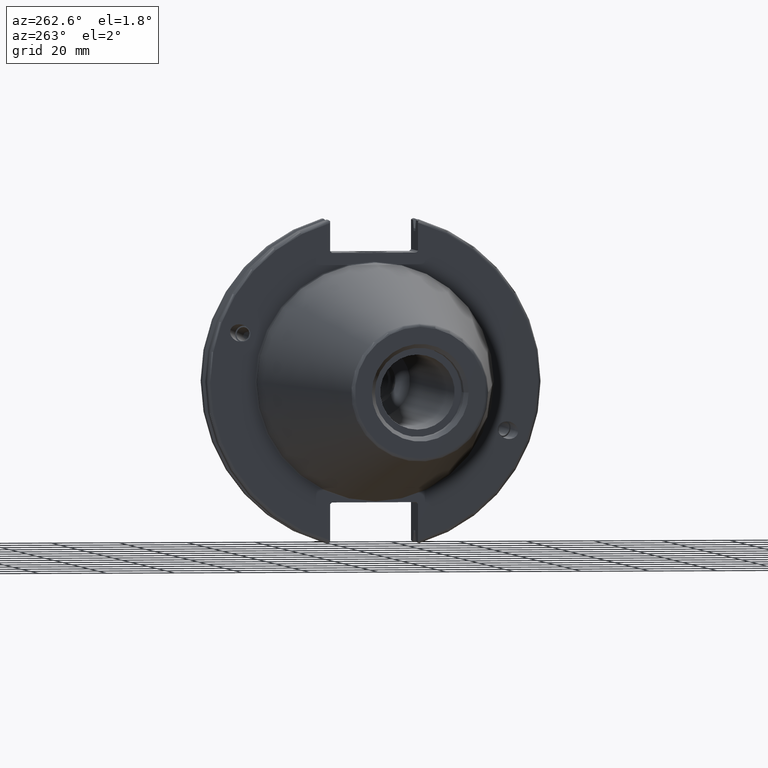
[diagram: clean part render]
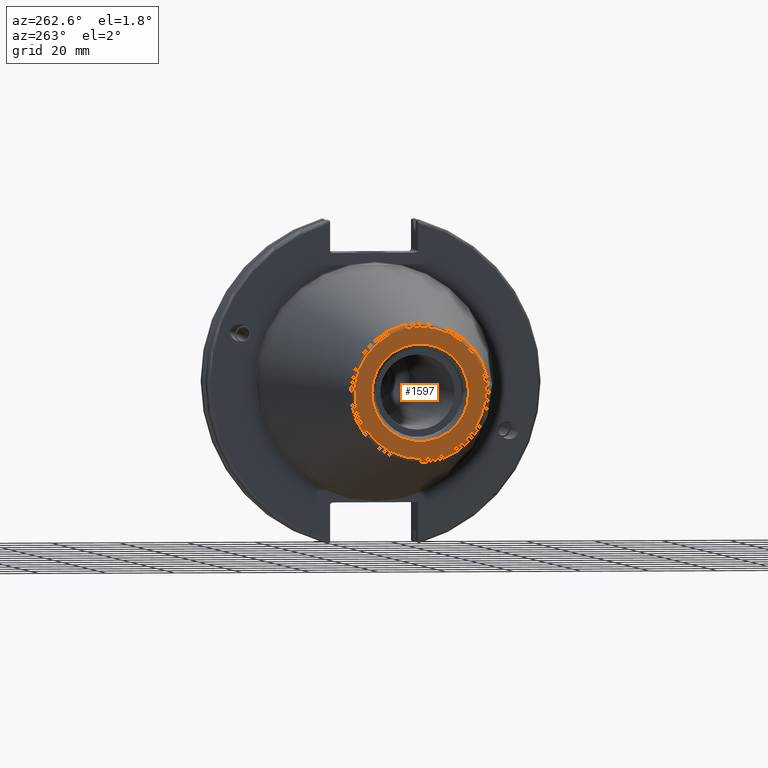
[diagram: same view with one face highlighted and labeled with its STEP entity id]
A machine part, auxiliary view. The second image highlights one B-rep face of the part: STEP entity #1597.
In plain terms, the highlighted planar face has unit normal (-1, 0, 0).
Its self-contained STEP definition (entity closure, byte-faithful):
#76=FACE_BOUND('',#360,.T.);
#98=PLANE('',#1776);
#178=CIRCLE('',#1775,19.2435889303637);
#179=CIRCLE('',#1777,14.2875);
#250=FACE_OUTER_BOUND('',#359,.T.);
#359=EDGE_LOOP('',(#1378));
#360=EDGE_LOOP('',(#1379));
#784=VERTEX_POINT('',#3302);
#785=VERTEX_POINT('',#3306);
#1000=EDGE_CURVE('',#784,#784,#178,.T.);
#1001=EDGE_CURVE('',#785,#785,#179,.T.);
#1378=ORIENTED_EDGE('',*,*,#1000,.F.);
#1379=ORIENTED_EDGE('',*,*,#1001,.T.);
#1597=ADVANCED_FACE('',(#250,#76),#98,.T.);
#1775=AXIS2_PLACEMENT_3D('',#3304,#2149,#2150);
#1776=AXIS2_PLACEMENT_3D('',#3305,#2151,#2152);
#1777=AXIS2_PLACEMENT_3D('',#3307,#2153,#2154);
#2149=DIRECTION('center_axis',(1.,0.,0.));
#2150=DIRECTION('ref_axis',(0.,-1.,1.83697019872103E-16));
#2151=DIRECTION('center_axis',(-1.,0.,0.));
#2152=DIRECTION('ref_axis',(0.,0.,1.));
#2153=DIRECTION('center_axis',(1.,0.,0.));
#2154=DIRECTION('ref_axis',(0.,0.,-1.));
#3302=CARTESIAN_POINT('',(-101.6,-2.35665995876774E-15,19.2435889303637));
#3304=CARTESIAN_POINT('Origin',(-101.6,0.,0.));
#3305=CARTESIAN_POINT('Origin',(-101.6,20.1083333333333,0.));
#3306=CARTESIAN_POINT('',(-101.6,-14.2875,-1.74971411428178E-15));
#3307=CARTESIAN_POINT('Origin',(-101.6,0.,0.));